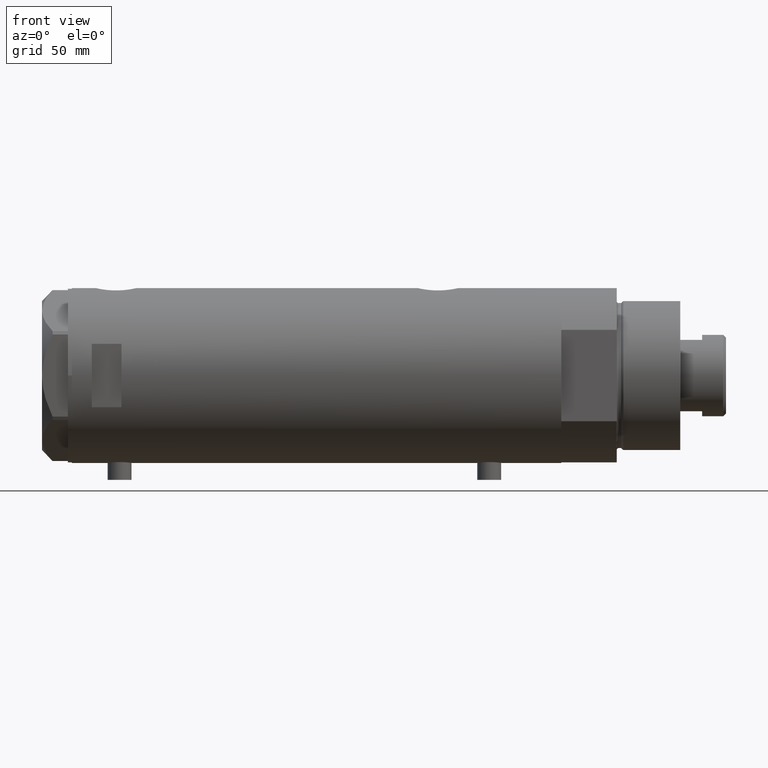
[diagram: clean part render]
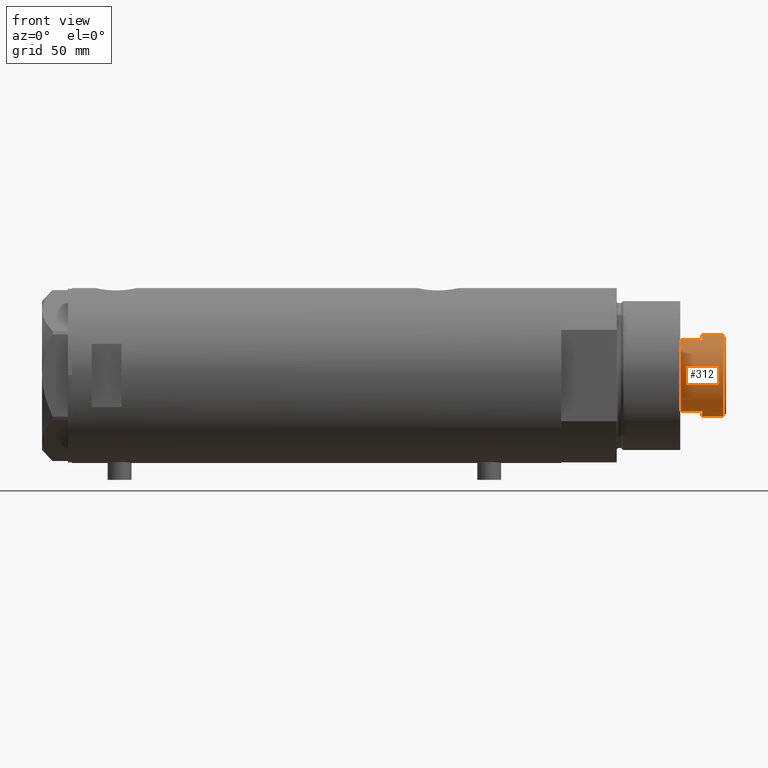
[diagram: same view with one face highlighted and labeled with its STEP entity id]
A machine part, front view. The second image highlights one B-rep face of the part: STEP entity #312.
In plain terms, the highlighted cylindrical surface (partial cylindrical patch) has radius 20.5 mm, axis along (-1, -0, 0).
Its self-contained STEP definition (entity closure, byte-faithful):
#50 = VECTOR ( 'NONE', #2325, 1000.000000000000000 ) ;
#70 = VERTEX_POINT ( 'NONE', #2008 ) ;
#95 = EDGE_CURVE ( 'NONE', #1733, #4492, #1967, .T. ) ;
#132 = DIRECTION ( 'NONE',  ( 0.000000000000000000, 0.000000000000000000, 1.000000000000000000 ) ) ;
#224 = CARTESIAN_POINT ( 'NONE',  ( 0.000000000000000000, 0.000000000000000000, 301.8999999999999773 ) ) ;
#312 = ADVANCED_FACE ( 'NONE', ( #701 ), #2102, .T. ) ;
#328 = DIRECTION ( 'NONE',  ( 1.000000000000000000, 0.000000000000000000, 0.000000000000000000 ) ) ;
#478 = CARTESIAN_POINT ( 'NONE',  ( 0.000000000000000000, 0.000000000000000000, 291.3000000000000114 ) ) ;
#496 = EDGE_LOOP ( 'NONE', ( #4011, #3189, #3894, #2164, #1063, #1755, #3541, #2772 ) ) ;
#511 = LINE ( 'NONE', #4031, #3441 ) ;
#515 = VERTEX_POINT ( 'NONE', #3740 ) ;
#519 = LINE ( 'NONE', #2920, #3893 ) ;
#522 = AXIS2_PLACEMENT_3D ( 'NONE', #478, #132, #1535 ) ;
#701 = FACE_OUTER_BOUND ( 'NONE', #496, .T. ) ;
#725 = VECTOR ( 'NONE', #867, 1000.000000000000000 ) ;
#867 = DIRECTION ( 'NONE',  ( -0.000000000000000000, -0.000000000000000000, -1.000000000000000000 ) ) ;
#910 = EDGE_CURVE ( 'NONE', #70, #2189, #511, .T. ) ;
#1063 = ORIENTED_EDGE ( 'NONE', *, *, #2583, .T. ) ;
#1108 = CIRCLE ( 'NONE', #522, 20.50000000000000000 ) ;
#1197 = CARTESIAN_POINT ( 'NONE',  ( 17.97852886083843060, -9.850000000000243006, 280.3000000000000114 ) ) ;
#1262 = CARTESIAN_POINT ( 'NONE',  ( 0.000000000000000000, 0.000000000000000000, 291.3000000000000114 ) ) ;
#1339 = DIRECTION ( 'NONE',  ( 0.000000000000000000, 0.000000000000000000, -1.000000000000000000 ) ) ;
#1378 = EDGE_CURVE ( 'NONE', #4492, #4290, #3665, .T. ) ;
#1381 = CIRCLE ( 'NONE', #2204, 20.50000000000000355 ) ;
#1416 = DIRECTION ( 'NONE',  ( -1.000000000000000000, 0.000000000000000000, 0.000000000000000000 ) ) ;
#1489 = DIRECTION ( 'NONE',  ( -0.000000000000000000, -0.000000000000000000, -1.000000000000000000 ) ) ;
#1535 = DIRECTION ( 'NONE',  ( 1.000000000000000000, 0.000000000000000000, 0.000000000000000000 ) ) ;
#1605 = DIRECTION ( 'NONE',  ( -0.000000000000000000, -0.000000000000000000, -1.000000000000000000 ) ) ;
#1636 = DIRECTION ( 'NONE',  ( 1.000000000000000000, 0.000000000000000000, 0.000000000000000000 ) ) ;
#1733 = VERTEX_POINT ( 'NONE', #2000 ) ;
#1754 = CIRCLE ( 'NONE', #3324, 20.50000000000000355 ) ;
#1755 = ORIENTED_EDGE ( 'NONE', *, *, #2320, .T. ) ;
#1964 = AXIS2_PLACEMENT_3D ( 'NONE', #1262, #2308, #3325 ) ;
#1967 = LINE ( 'NONE', #3038, #50 ) ;
#2000 = CARTESIAN_POINT ( 'NONE',  ( -20.50000000000000355, 0.000000000000000000, 301.8999999999999773 ) ) ;
#2008 = CARTESIAN_POINT ( 'NONE',  ( 20.50000000000000355, 2.510525938252074481E-15, 301.8999999999999773 ) ) ;
#2102 = CYLINDRICAL_SURFACE ( 'NONE', #3730, 20.50000000000000355 ) ;
#2164 = ORIENTED_EDGE ( 'NONE', *, *, #1378, .T. ) ;
#2165 = CARTESIAN_POINT ( 'NONE',  ( 20.50000000000000000, 2.510525938252074481E-15, 291.3000000000000114 ) ) ;
#2189 = VERTEX_POINT ( 'NONE', #2165 ) ;
#2204 = AXIS2_PLACEMENT_3D ( 'NONE', #3863, #3843, #328 ) ;
#2308 = DIRECTION ( 'NONE',  ( 0.000000000000000000, 0.000000000000000000, 1.000000000000000000 ) ) ;
#2320 = EDGE_CURVE ( 'NONE', #515, #2828, #1381, .T. ) ;
#2325 = DIRECTION ( 'NONE',  ( -0.000000000000000000, -0.000000000000000000, -1.000000000000000000 ) ) ;
#2364 = CARTESIAN_POINT ( 'NONE',  ( -20.50000000000000000, 0.000000000000000000, 291.3000000000000114 ) ) ;
#2466 = VERTEX_POINT ( 'NONE', #2608 ) ;
#2541 = EDGE_CURVE ( 'NONE', #2466, #2828, #2974, .T. ) ;
#2583 = EDGE_CURVE ( 'NONE', #4290, #515, #519, .T. ) ;
#2608 = CARTESIAN_POINT ( 'NONE',  ( 17.97852886083843060, -9.849999999999994316, 291.3000000000000114 ) ) ;
#2772 = ORIENTED_EDGE ( 'NONE', *, *, #4224, .T. ) ;
#2828 = VERTEX_POINT ( 'NONE', #1197 ) ;
#2920 = CARTESIAN_POINT ( 'NONE',  ( -17.97852886083842350, -9.850000000000001421, 291.3000000000000114 ) ) ;
#2974 = LINE ( 'NONE', #4365, #725 ) ;
#3038 = CARTESIAN_POINT ( 'NONE',  ( -20.50000000000000355, 0.000000000000000000, 291.3000000000000114 ) ) ;
#3112 = DIRECTION ( 'NONE',  ( -0.000000000000000000, -0.000000000000000000, -1.000000000000000000 ) ) ;
#3189 = ORIENTED_EDGE ( 'NONE', *, *, #3841, .T. ) ;
#3256 = CARTESIAN_POINT ( 'NONE',  ( -17.97852886083842705, -9.849999999999996092, 291.3000000000000114 ) ) ;
#3324 = AXIS2_PLACEMENT_3D ( 'NONE', #224, #1339, #1636 ) ;
#3325 = DIRECTION ( 'NONE',  ( 1.000000000000000000, 0.000000000000000000, 0.000000000000000000 ) ) ;
#3441 = VECTOR ( 'NONE', #1605, 1000.000000000000000 ) ;
#3541 = ORIENTED_EDGE ( 'NONE', *, *, #2541, .F. ) ;
#3665 = CIRCLE ( 'NONE', #1964, 20.50000000000000000 ) ;
#3730 = AXIS2_PLACEMENT_3D ( 'NONE', #3790, #3112, #1416 ) ;
#3740 = CARTESIAN_POINT ( 'NONE',  ( -17.97852886083842350, -9.850000000000253664, 280.3000000000000114 ) ) ;
#3790 = CARTESIAN_POINT ( 'NONE',  ( 0.000000000000000000, 0.000000000000000000, 291.3000000000000114 ) ) ;
#3841 = EDGE_CURVE ( 'NONE', #70, #1733, #1754, .T. ) ;
#3843 = DIRECTION ( 'NONE',  ( 0.000000000000000000, 0.000000000000000000, 1.000000000000000000 ) ) ;
#3863 = CARTESIAN_POINT ( 'NONE',  ( 0.000000000000000000, 0.000000000000000000, 280.3000000000000114 ) ) ;
#3893 = VECTOR ( 'NONE', #1489, 1000.000000000000000 ) ;
#3894 = ORIENTED_EDGE ( 'NONE', *, *, #95, .T. ) ;
#4011 = ORIENTED_EDGE ( 'NONE', *, *, #910, .F. ) ;
#4031 = CARTESIAN_POINT ( 'NONE',  ( 20.50000000000000355, 2.510525938252074481E-15, 291.3000000000000114 ) ) ;
#4224 = EDGE_CURVE ( 'NONE', #2466, #2189, #1108, .T. ) ;
#4290 = VERTEX_POINT ( 'NONE', #3256 ) ;
#4365 = CARTESIAN_POINT ( 'NONE',  ( 17.97852886083843060, -9.849999999999994316, 291.3000000000000114 ) ) ;
#4492 = VERTEX_POINT ( 'NONE', #2364 ) ;